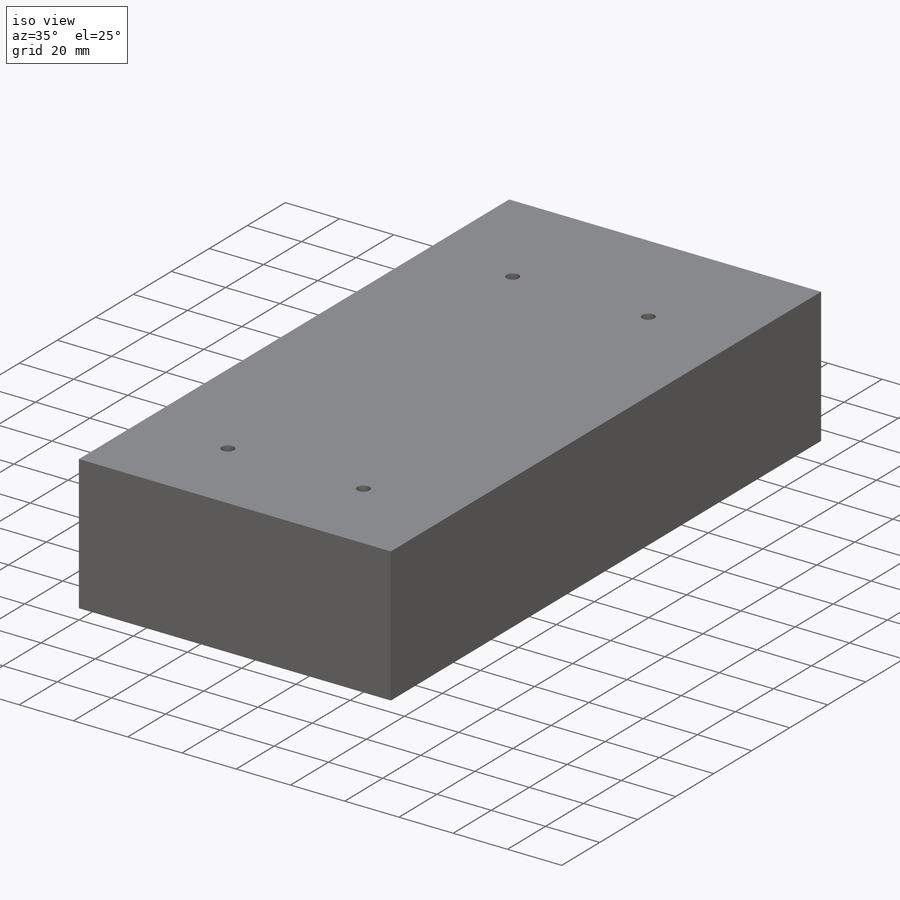
[diagram: iso view]
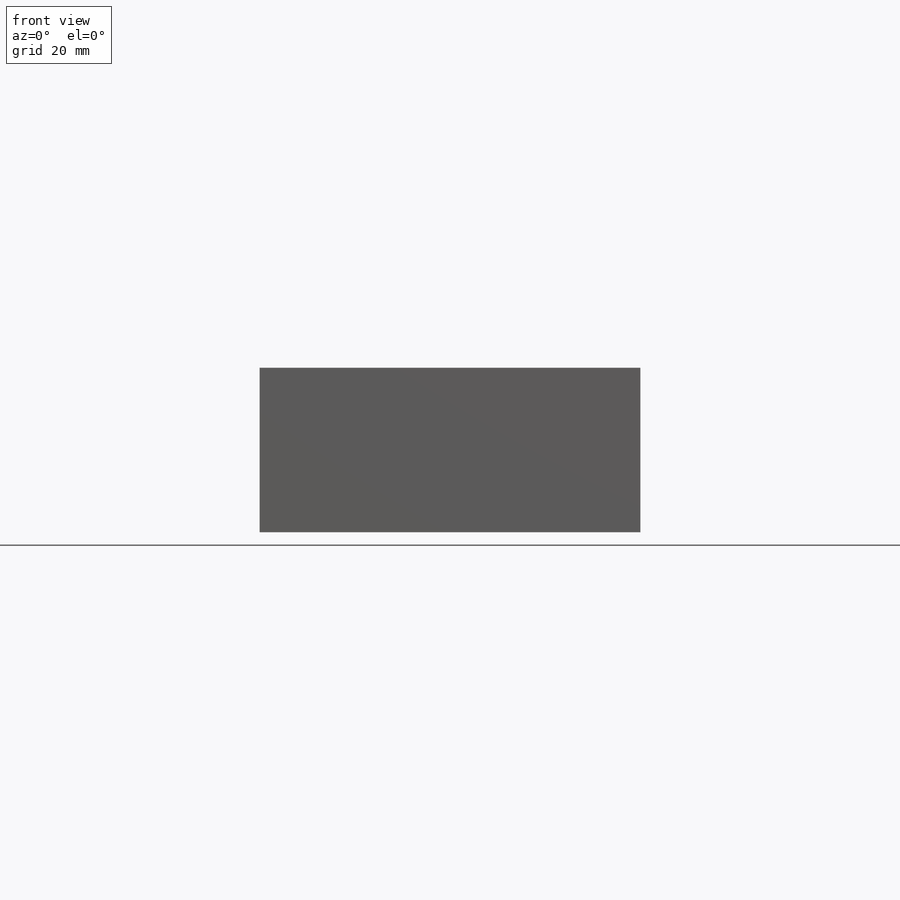
[diagram: front view]
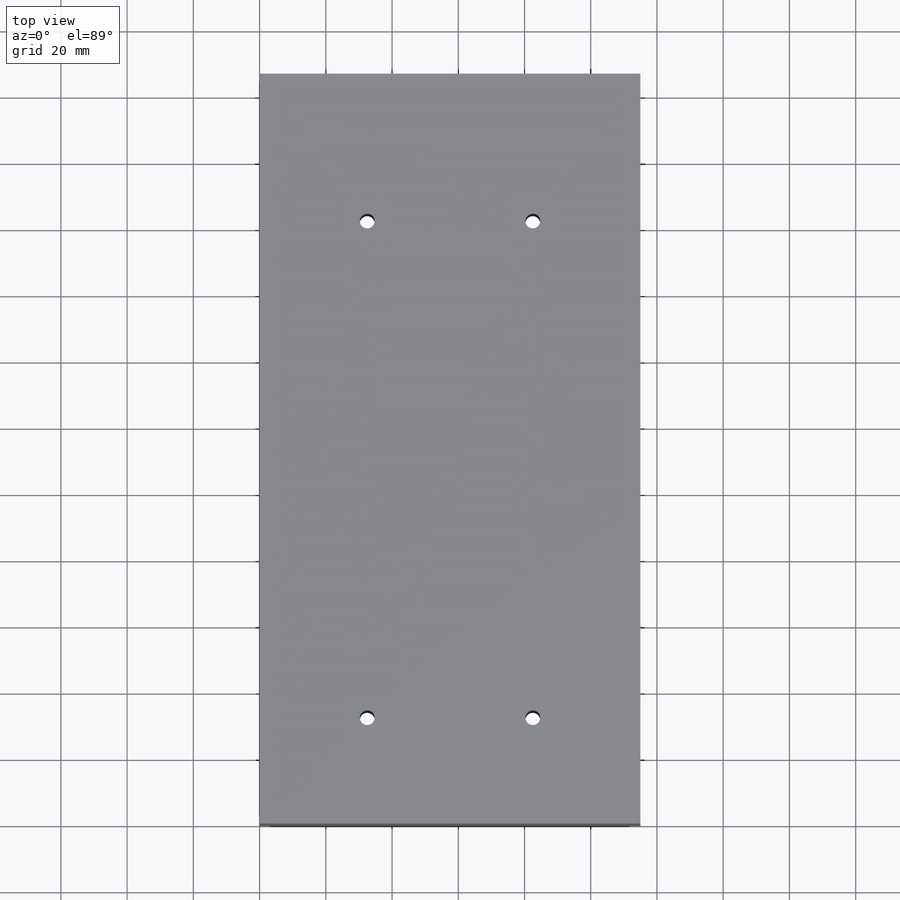
[diagram: top view]
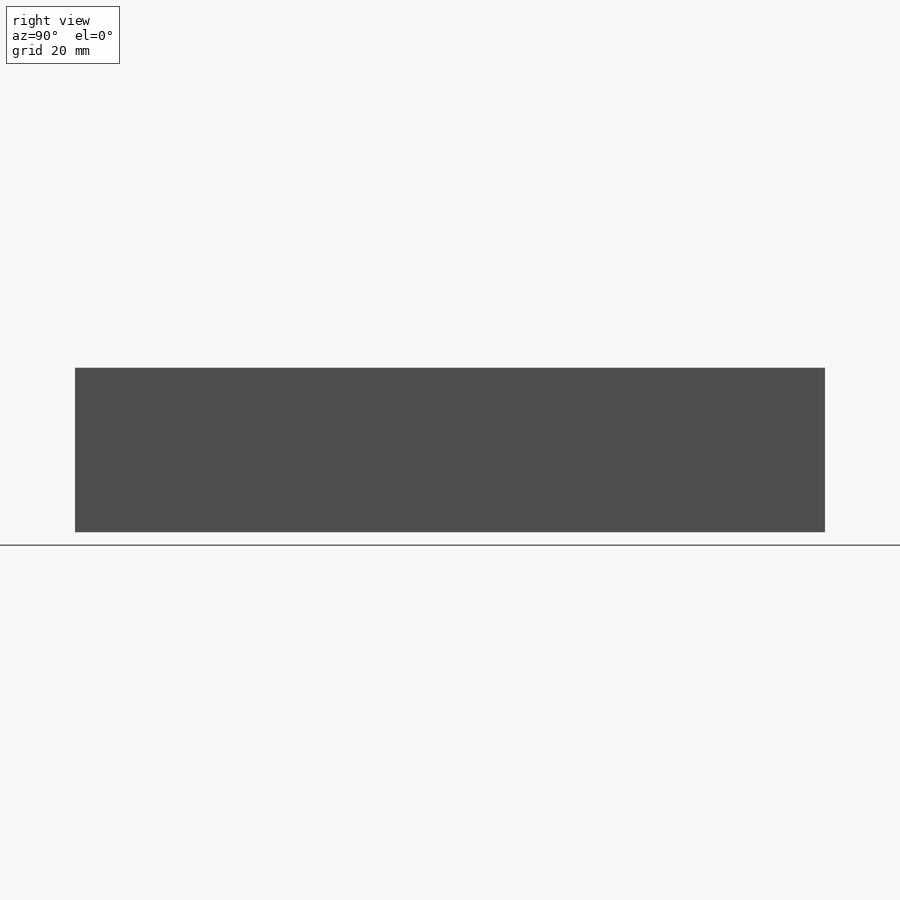
[diagram: right view]
SOLIDWORKS PART (.sldprt)
format: sldprt  version: not decoded by parser v0  size: 295,424 bytes
history: native  units: mm
features: sketch x7, hole x2, cut_extrude x2, material x1, extrude x1 (+12 scaffold rows collapsed)
feature tree (25):
  scaffold x12  (default folders/planes/origin — collapsed)
  material  "Material <not specified>"
  sketch  "Sketch3"  dims[D1=226.5mm D2=115.0mm]
  extrude  "Boss-Extrude1"  Depth=49.7mm
  hole  "CSK for M4 Flat Head Machine Screw2"  Diameter=4.5mm Depth=49.7mm
  sketch  "Sketch7"  dims[c1.D1=50.0mm c1.D2=32.0mm c2.D1=50.0mm c2.D2=32.0mm c2.D3=150.0mm]
  sketch  "Sketch6"  dims[hole-wizard template sketch: 55 standard entries collapsed; hole parameters kept: c17.Thru Hole Depth=49.7mm c17.Near C'Sink Dia.=9.4mm c17.D4=~3.666174mm c17.Near C'Sink Angle=90.0deg]
  sketch  "Sketch8"
  cut_extrude  "Cut-Extrude1"  Depth=48mm
  sketch  "Sketch9"
  cut_extrude  "Cut-Extrude2"  Depth=6mm
  hole  "M4 Clearance Hole1"  Diameter=4.5mm Depth=5mm
  sketch  "Sketch11"  dims[D1=32.5mm D2=37.0mm D3=150.0mm]
  sketch  "Sketch10"  dims[hole-wizard template sketch: 47 standard entries collapsed; hole parameters kept: c15.Hole Depth=5.0mm c15.D3=~14.816244mm c15.Drill Angle=118.0deg]
decode coverage: 10 of 12 modeling features carry decoded parameters
note: ~ marks probable driven/reference dimensions
note: suppression state not decoded; provenance and decode notes live in map.json
